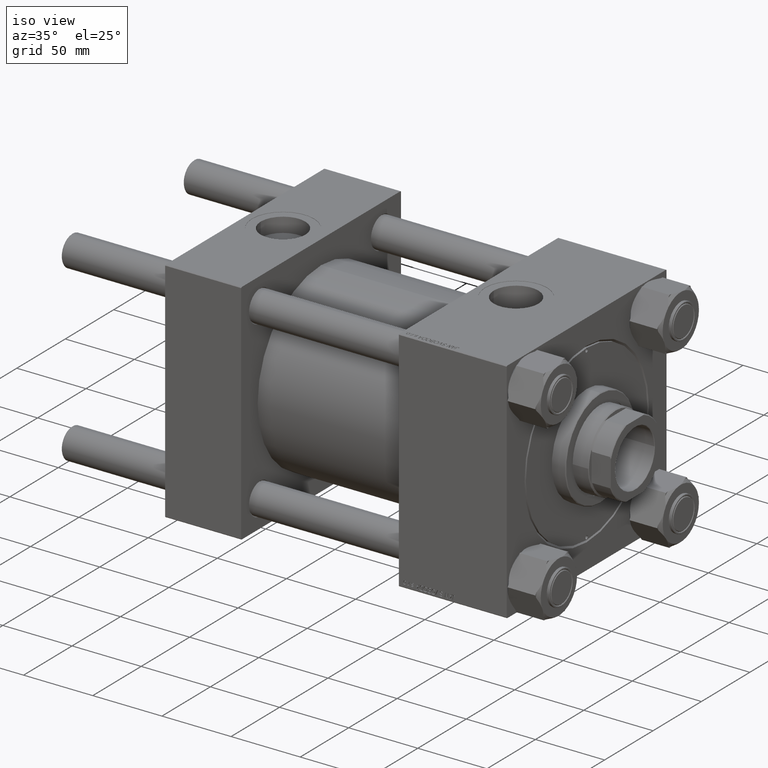
[diagram: clean part render]
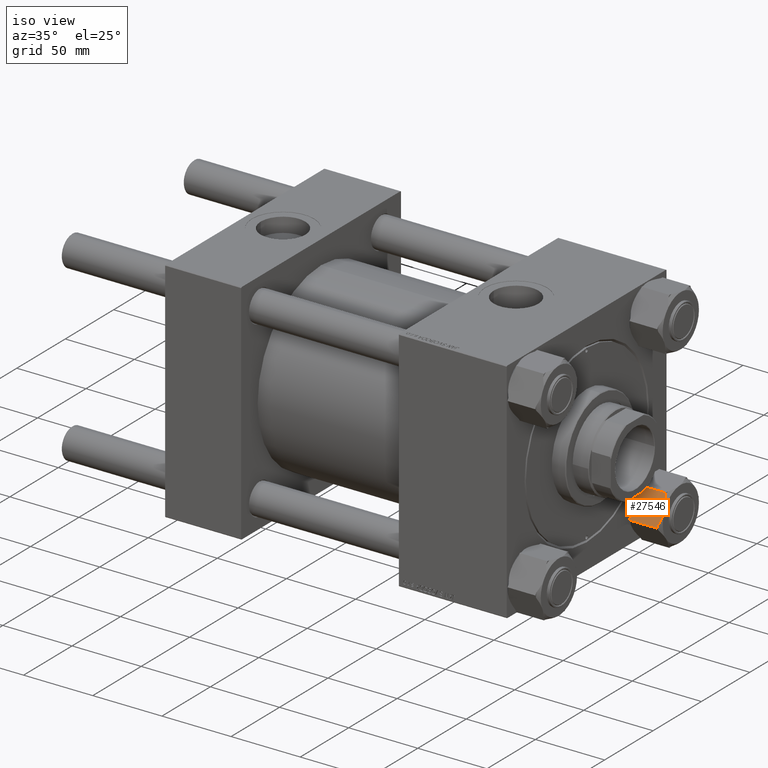
[diagram: same view with one face highlighted and labeled with its STEP entity id]
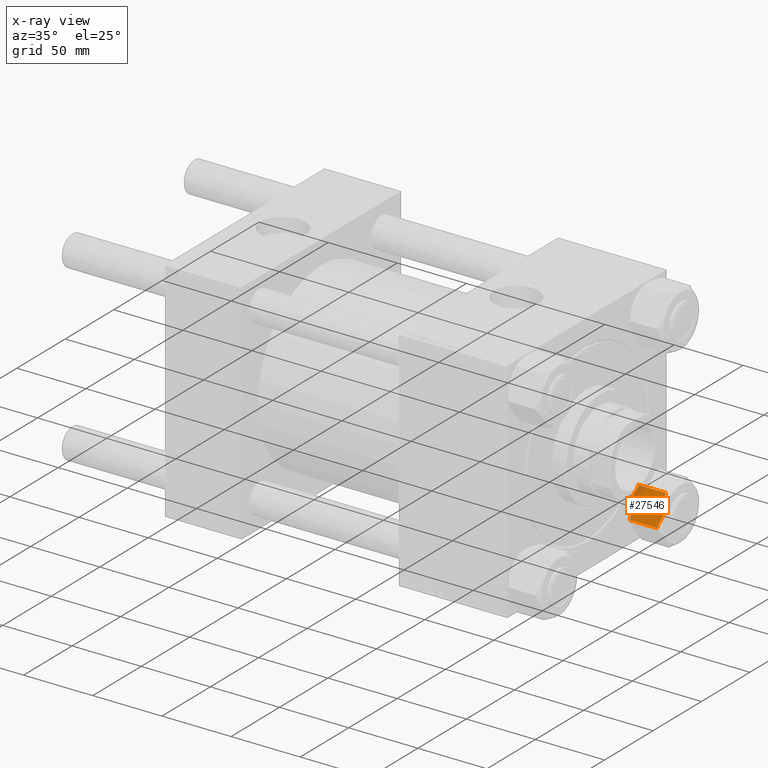
[diagram: x-ray of the same camera — body ghosted, the highlighted face saturated]
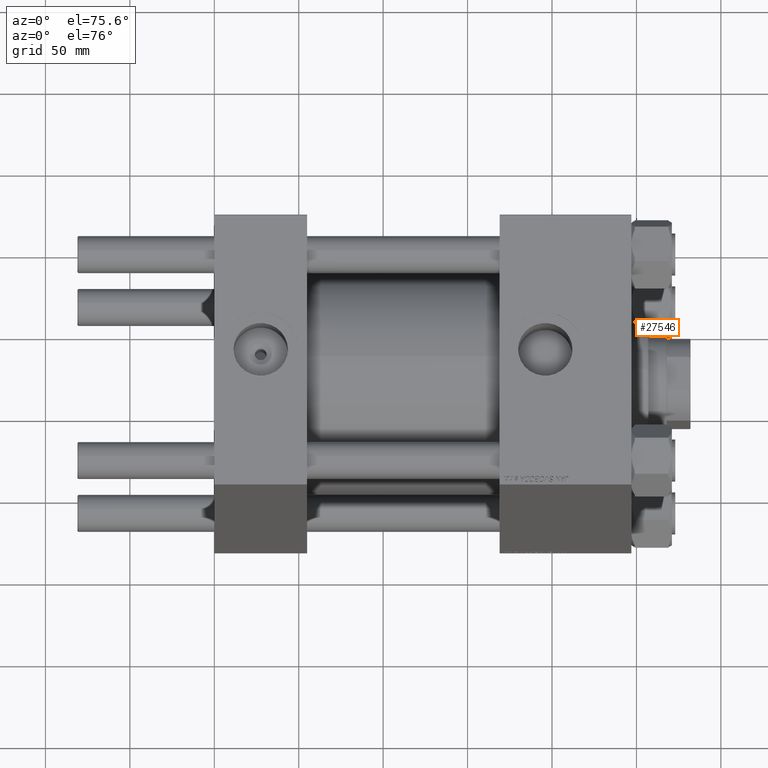
[diagram: same view with one face highlighted and labeled with its STEP entity id]
A machine part, iso view. The second image highlights one B-rep face of the part: STEP entity #27546.
The next image is the same camera in x-ray: the body ghosted, the highlighted face saturated — about 7% of this face is hidden behind the body in this view.
A second angle (auxiliary view) of the same face is appended — the face is thin or edge-on in the first view.
In plain terms, the highlighted planar face has unit normal (0, 0.9104, -0.4137).
Its self-contained STEP definition (entity closure, byte-faithful):
#380 = LINE ( 'NONE', #16451, #21496 ) ;
#875 = ORIENTED_EDGE ( 'NONE', *, *, #12559, .F. ) ;
#1012 = CARTESIAN_POINT ( 'NONE',  ( -1.921304447834778717, -18.72346922981957107, -23.90544093450553120 ) ) ;
#1046 = VECTOR ( 'NONE', #16898, 1000.000000000000000 ) ;
#2190 = VERTEX_POINT ( 'NONE', #47407 ) ;
#2386 = CARTESIAN_POINT ( 'NONE',  ( 3.046460787050300212, -18.72346922981956752, -23.80854718362131450 ) ) ;
#3078 = CARTESIAN_POINT ( 'NONE',  ( 8.177288578347873482, -18.72346922981956752, -1.697860426966554703 ) ) ;
#3791 = B_SPLINE_CURVE_WITH_KNOTS ( 'NONE', 3,
 ( #15032, #10945, #7372, #46653, #7625, #22939, #19630, #38774 ),
 .UNSPECIFIED., .F., .F.,
 ( 4, 2, 2, 4 ),
 ( 0.02914159164821652701, 0.03142872273350531820, 0.03371585381879411980, 0.03829011598937170913 ),
 .UNSPECIFIED. ) ;
#3945 = B_SPLINE_CURVE_WITH_KNOTS ( 'NONE', 3,
 ( #29199, #44765, #29446, #45007, #37362, #2386, #17965, #10296 ),
 .UNSPECIFIED., .F., .F.,
 ( 4, 2, 2, 4 ),
 ( 0.02914159164821654088, 0.03142872273350533902, 0.03371585381879413368, 0.03829011598937172300 ),
 .UNSPECIFIED. ) ;
#4841 = CARTESIAN_POINT ( 'NONE',  ( -1.539734355582343506, -18.72346922981956396, -23.94071174619770304 ) ) ;
#6780 = ORIENTED_EDGE ( 'NONE', *, *, #43917, .F. ) ;
#7149 = CARTESIAN_POINT ( 'NONE',  ( 10.81000000000002181, -18.72346922981956041, -22.00000000000000000 ) ) ;
#7372 = CARTESIAN_POINT ( 'NONE',  ( -7.462432408233303782, -18.72346922981957462, -1.420646699533975710 ) ) ;
#7625 = CARTESIAN_POINT ( 'NONE',  ( -5.269460841173441601, -18.72346922981957107, -0.7140404030614242448 ) ) ;
#7903 = LINE ( 'NONE', #8658, #18886 ) ;
#8425 = AXIS2_PLACEMENT_3D ( 'NONE', #20525, #31778, #39439 ) ;
#8554 = VERTEX_POINT ( 'NONE', #9388 ) ;
#8658 = CARTESIAN_POINT ( 'NONE',  ( 10.81000000000002181, -18.72346922981956041, -22.00000000000000000 ) ) ;
#9159 = CARTESIAN_POINT ( 'NONE',  ( 8.882222521378222879, -18.72346922981956396, -22.00000000000000000 ) ) ;
#9388 = CARTESIAN_POINT ( 'NONE',  ( -10.80999999999998096, -18.72346922981957817, -2.000000000000001776 ) ) ;
#9581 = VERTEX_POINT ( 'NONE', #12256 ) ;
#9796 = VERTEX_POINT ( 'NONE', #26357 ) ;
#10296 = CARTESIAN_POINT ( 'NONE',  ( 1.802777518484590916E-14, -18.72346922981956041, -24.00000000000000000 ) ) ;
#10327 = DIRECTION ( 'NONE',  ( 1.000000000000000000, 9.628437424478115255E-16, -0.000000000000000000 ) ) ;
#10660 = CARTESIAN_POINT ( 'NONE',  ( -6.014330298555118581, -18.72346922981957462, -23.06950926946395697 ) ) ;
#10945 = CARTESIAN_POINT ( 'NONE',  ( -8.180319050237773837, -18.72346922981957107, -1.699159308219209574 ) ) ;
#12256 = CARTESIAN_POINT ( 'NONE',  ( -8.882222521378187352, -18.72346922981957462, -2.000000000000000000 ) ) ;
#12559 = EDGE_CURVE ( 'NONE', #9581, #42958, #3791, .T. ) ;
#12593 = ORIENTED_EDGE ( 'NONE', *, *, #39896, .F. ) ;
#13248 = ORIENTED_EDGE ( 'NONE', *, *, #13563, .F. ) ;
#13563 = EDGE_CURVE ( 'NONE', #27543, #8554, #33600, .T. ) ;
#13727 = CARTESIAN_POINT ( 'NONE',  ( -0.3838633933595101411, -18.72346922981956752, -23.99999999999998934 ) ) ;
#13977 = CARTESIAN_POINT ( 'NONE',  ( -7.459573834530387693, -18.72346922981957462, -22.58020199294973551 ) ) ;
#14547 = CARTESIAN_POINT ( 'NONE',  ( 3.058371725687371256, -18.72346922981956752, -0.2332142928950816096 ) ) ;
#14669 = ORIENTED_EDGE ( 'NONE', *, *, #36857, .F. ) ;
#14811 = CARTESIAN_POINT ( 'NONE',  ( 8.882222521378222879, -18.72346922981956396, -2.000000000000000000 ) ) ;
#15005 = CARTESIAN_POINT ( 'NONE',  ( -5.284196261866785704, -18.72346922981956396, -23.28188187721270097 ) ) ;
#15032 = CARTESIAN_POINT ( 'NONE',  ( -8.882222521378187352, -18.72346922981957462, -2.000000000000000000 ) ) ;
#15953 = PLANE ( 'NONE',  #8425 ) ;
#16451 = CARTESIAN_POINT ( 'NONE',  ( 10.81000000000002181, -18.72346922981956041, -2.000000000000001776 ) ) ;
#16581 = CARTESIAN_POINT ( 'NONE',  ( -3.058371725687333953, -18.72346922981957462, -23.76678570710492622 ) ) ;
#16898 = DIRECTION ( 'NONE',  ( -0.000000000000000000, -0.000000000000000000, 1.000000000000000000 ) ) ;
#17965 = CARTESIAN_POINT ( 'NONE',  ( 1.538851192155987535, -18.72346922981956396, -23.99999999999998579 ) ) ;
#18389 = CARTESIAN_POINT ( 'NONE',  ( 1.802777518484590916E-14, -18.72346922981956041, 0.000000000000000000 ) ) ;
#18886 = VECTOR ( 'NONE', #28800, 1000.000000000000000 ) ;
#19630 = CARTESIAN_POINT ( 'NONE',  ( -1.538851192155951342, -18.72346922981957462, -1.008985646769322722E-14 ) ) ;
#20525 = CARTESIAN_POINT ( 'NONE',  ( 10.81000000000002181, -18.72346922981956041, -24.00000000000000000 ) ) ;
#20606 = EDGE_CURVE ( 'NONE', #46068, #44242, #7903, .T. ) ;
#20725 = CARTESIAN_POINT ( 'NONE',  ( 10.81000000000002181, -18.72346922981956041, -24.00000000000000000 ) ) ;
#21496 = VECTOR ( 'NONE', #39681, 1000.000000000000000 ) ;
#22119 = CARTESIAN_POINT ( 'NONE',  ( -10.80999999999998096, -18.72346922981957817, -24.00000000000000000 ) ) ;
#22141 = CARTESIAN_POINT ( 'NONE',  ( -8.882222521378187352, -18.72346922981957462, -22.00000000000000000 ) ) ;
#22442 = VECTOR ( 'NONE', #10327, 1000.000000000000000 ) ;
#22466 = CARTESIAN_POINT ( 'NONE',  ( 1.921304447834815798, -18.72346922981956752, -0.09455906549446466136 ) ) ;
#22939 = CARTESIAN_POINT ( 'NONE',  ( -3.046460787050261132, -18.72346922981957817, -0.1914528163786921866 ) ) ;
#22974 = CARTESIAN_POINT ( 'NONE',  ( 0.7711943830714066417, -18.72346922981956752, -0.01195010307163031985 ) ) ;
#25621 = ORIENTED_EDGE ( 'NONE', *, *, #31988, .T. ) ;
#26161 = LINE ( 'NONE', #41732, #22442 ) ;
#26357 = CARTESIAN_POINT ( 'NONE',  ( 8.882222521378222879, -18.72346922981956396, -2.000000000000000000 ) ) ;
#26558 = CARTESIAN_POINT ( 'NONE',  ( 5.284196261866820343, -18.72346922981956396, -0.7181181227872923678 ) ) ;
#27543 = VERTEX_POINT ( 'NONE', #36346 ) ;
#27546 = ADVANCED_FACE ( 'NONE', ( #39938 ), #15953, .F. ) ;
#27902 = CARTESIAN_POINT ( 'NONE',  ( 1.802777518484590916E-14, -18.72346922981956041, -24.00000000000000000 ) ) ;
#28800 = DIRECTION ( 'NONE',  ( -1.000000000000000000, -9.628437424478115255E-16, 0.000000000000000000 ) ) ;
#29199 = CARTESIAN_POINT ( 'NONE',  ( 8.882222521378222879, -18.72346922981956396, -22.00000000000000000 ) ) ;
#29446 = CARTESIAN_POINT ( 'NONE',  ( 7.462432408233341086, -18.72346922981956752, -22.57935330046603184 ) ) ;
#29581 = VECTOR ( 'NONE', #42614, 1000.000000000000000 ) ;
#29871 = EDGE_LOOP ( 'NONE', ( #40151, #25621, #12593, #6780, #875, #36047, #13248, #35681, #47279, #14669 ) ) ;
#29873 = CARTESIAN_POINT ( 'NONE',  ( 6.014330298555154997, -18.72346922981956396, -0.9304907305360446967 ) ) ;
#30900 = CARTESIAN_POINT ( 'NONE',  ( 3.806221811192795013, -18.72346922981956396, -0.3694591241840573526 ) ) ;
#31778 = DIRECTION ( 'NONE',  ( -9.628437424478115255E-16, 1.000000000000000000, 0.000000000000000000 ) ) ;
#31988 = EDGE_CURVE ( 'NONE', #46068, #33148, #43952, .T. ) ;
#33133 = CARTESIAN_POINT ( 'NONE',  ( 1.802777518484590916E-14, -18.72346922981956041, -24.00000000000000000 ) ) ;
#33148 = VERTEX_POINT ( 'NONE', #45465 ) ;
#33360 = DIRECTION ( 'NONE',  ( -0.000000000000000000, -0.000000000000000000, 1.000000000000000000 ) ) ;
#33446 = EDGE_CURVE ( 'NONE', #2190, #27543, #41849, .T. ) ;
#33600 = LINE ( 'NONE', #22119, #49568 ) ;
#33769 = CARTESIAN_POINT ( 'NONE',  ( 1.802777518484590916E-14, -18.72346922981956041, 0.000000000000000000 ) ) ;
#35259 = EDGE_CURVE ( 'NONE', #8554, #9581, #380, .T. ) ;
#35681 = ORIENTED_EDGE ( 'NONE', *, *, #33446, .F. ) ;
#36047 = ORIENTED_EDGE ( 'NONE', *, *, #35259, .F. ) ;
#36346 = CARTESIAN_POINT ( 'NONE',  ( -10.80999999999998096, -18.72346922981957817, -22.00000000000000000 ) ) ;
#36857 = EDGE_CURVE ( 'NONE', #44242, #45072, #3945, .T. ) ;
#37362 = CARTESIAN_POINT ( 'NONE',  ( 5.269460841173481569, -18.72346922981956396, -23.28595959693857864 ) ) ;
#37506 = B_SPLINE_CURVE_WITH_KNOTS ( 'NONE', 3,
 ( #18389, #41624, #22974, #38561, #22466, #14547, #30900, #26558, #29873, #38304, #3078, #14811 ),
 .UNSPECIFIED., .F., .F.,
 ( 4, 2, 2, 2, 2, 4 ),
 ( 0.03829011598937170913, 0.03943115666170206313, 0.04057219733403242407, 0.04285427867869313207, 0.04513636002335384700, 0.04741844136801455500 ),
 .UNSPECIFIED. ) ;
#38304 = CARTESIAN_POINT ( 'NONE',  ( 7.459573834530424996, -18.72346922981956041, -1.419798007050271149 ) ) ;
#38561 = CARTESIAN_POINT ( 'NONE',  ( 1.539734355582380809, -18.72346922981956396, -0.05928825380229352238 ) ) ;
#38774 = CARTESIAN_POINT ( 'NONE',  ( 1.802777518484590916E-14, -18.72346922981956041, 0.000000000000000000 ) ) ;
#39439 = DIRECTION ( 'NONE',  ( -1.000000000000000000, -9.628437424478115255E-16, 0.000000000000000000 ) ) ;
#39681 = DIRECTION ( 'NONE',  ( 1.000000000000000000, 9.628437424478115255E-16, -0.000000000000000000 ) ) ;
#39818 = CARTESIAN_POINT ( 'NONE',  ( -0.7711943830713697823, -18.72346922981956752, -23.98804989692837708 ) ) ;
#39896 = EDGE_CURVE ( 'NONE', #9796, #33148, #26161, .T. ) ;
#39938 = FACE_OUTER_BOUND ( 'NONE', #29871, .T. ) ;
#40151 = ORIENTED_EDGE ( 'NONE', *, *, #20606, .F. ) ;
#41624 = CARTESIAN_POINT ( 'NONE',  ( 0.3838633933595475001, -18.72346922981956752, -1.050320854595332736E-14 ) ) ;
#41732 = CARTESIAN_POINT ( 'NONE',  ( 10.81000000000002181, -18.72346922981956041, -2.000000000000001776 ) ) ;
#41808 = CARTESIAN_POINT ( 'NONE',  ( -8.177288578347834402, -18.72346922981957817, -22.30213957303346106 ) ) ;
#41849 = LINE ( 'NONE', #45661, #29581 ) ;
#42614 = DIRECTION ( 'NONE',  ( -1.000000000000000000, -9.628437424478115255E-16, 0.000000000000000000 ) ) ;
#42958 = VERTEX_POINT ( 'NONE', #33769 ) ;
#43356 = EDGE_CURVE ( 'NONE', #45072, #2190, #44908, .T. ) ;
#43917 = EDGE_CURVE ( 'NONE', #42958, #9796, #37506, .T. ) ;
#43952 = LINE ( 'NONE', #20725, #1046 ) ;
#44242 = VERTEX_POINT ( 'NONE', #9159 ) ;
#44765 = CARTESIAN_POINT ( 'NONE',  ( 8.180319050237811140, -18.72346922981957107, -22.30084069178079886 ) ) ;
#44908 = B_SPLINE_CURVE_WITH_KNOTS ( 'NONE', 3,
 ( #33133, #13727, #39818, #4841, #1012, #16581, #49174, #15005, #10660, #13977, #41808, #22141 ),
 .UNSPECIFIED., .F., .F.,
 ( 4, 2, 2, 2, 2, 4 ),
 ( 0.03829011598937172300, 0.03943115666170207700, 0.04057219733403243100, 0.04285427867869313900, 0.04513636002335385394, 0.04741844136801456888 ),
 .UNSPECIFIED. ) ;
#45007 = CARTESIAN_POINT ( 'NONE',  ( 6.004110770065003599, -18.72346922981956396, -23.07284951269627626 ) ) ;
#45072 = VERTEX_POINT ( 'NONE', #27902 ) ;
#45465 = CARTESIAN_POINT ( 'NONE',  ( 10.81000000000002181, -18.72346922981956041, -2.000000000000001776 ) ) ;
#45661 = CARTESIAN_POINT ( 'NONE',  ( 10.81000000000002181, -18.72346922981956041, -22.00000000000000000 ) ) ;
#46068 = VERTEX_POINT ( 'NONE', #7149 ) ;
#46653 = CARTESIAN_POINT ( 'NONE',  ( -6.004110770064962743, -18.72346922981956752, -0.9271504873037215155 ) ) ;
#47279 = ORIENTED_EDGE ( 'NONE', *, *, #43356, .F. ) ;
#47407 = CARTESIAN_POINT ( 'NONE',  ( -8.882222521378187352, -18.72346922981957462, -22.00000000000000000 ) ) ;
#49174 = CARTESIAN_POINT ( 'NONE',  ( -3.806221811192758597, -18.72346922981957107, -23.63054087581594587 ) ) ;
#49568 = VECTOR ( 'NONE', #33360, 1000.000000000000000 ) ;